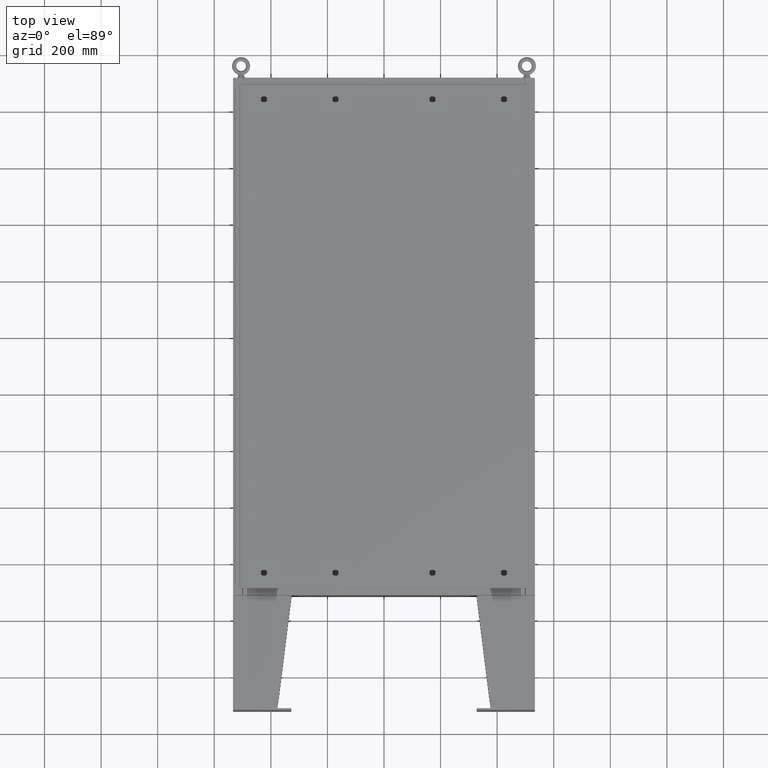
[diagram: clean part render]
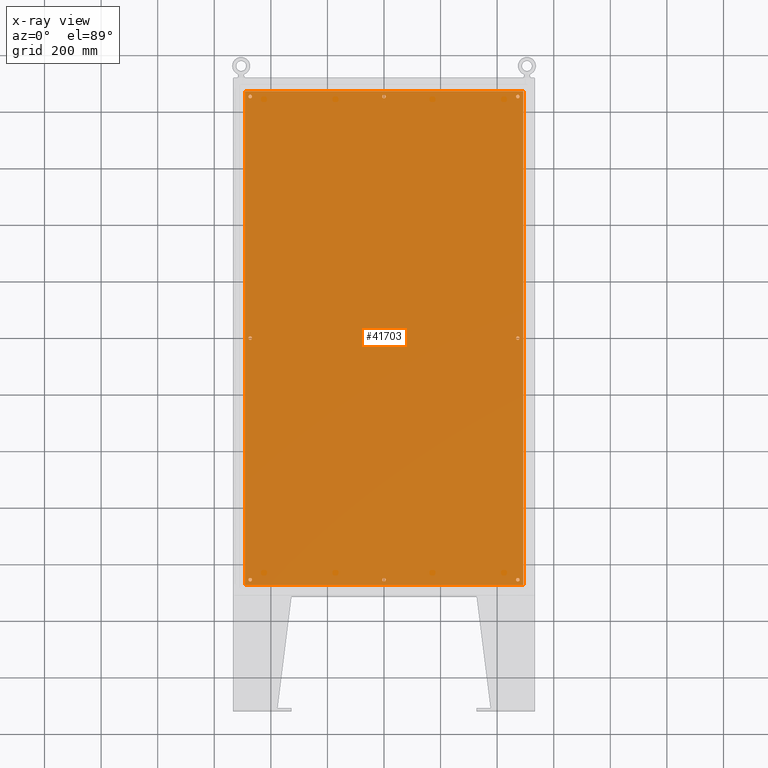
[diagram: x-ray — body ghosted, one internal face saturated and labeled with its STEP entity id]
A machine part, top view, then the same camera in x-ray: the body is ghosted and one INTERNAL B-rep face — a face not visible from any outside direction — is saturated and labeled: STEP entity #41703.
In plain terms, the highlighted planar face has unit normal (0, 0, -1).
Its self-contained STEP definition (entity closure, byte-faithful):
#134 = DIRECTION ( 'NONE',  ( -0.0000000000000000000, -0.0000000000000000000, 1.000000000000000000 ) ) ;
#239 = FACE_BOUND ( 'NONE', #47751, .T. ) ;
#1096 = EDGE_LOOP ( 'NONE', ( #36589, #51843 ) ) ;
#1311 = EDGE_CURVE ( 'NONE', #53087, #39742, #18558, .T. ) ;
#1860 = EDGE_CURVE ( 'NONE', #66412, #60055, #45798, .T. ) ;
#1984 = FACE_BOUND ( 'NONE', #1096, .T. ) ;
#2004 = EDGE_LOOP ( 'NONE', ( #71175, #69932, #26095, #37043 ) ) ;
#2598 = EDGE_CURVE ( 'NONE', #39639, #15399, #32056, .T. ) ;
#3147 = DIRECTION ( 'NONE',  ( -0.0000000000000000000, -0.0000000000000000000, 1.000000000000000000 ) ) ;
#3746 = CIRCLE ( 'NONE', #25615, 0.2499999999999987000 ) ;
#3819 = DIRECTION ( 'NONE',  ( -1.000000000000000000, 0.0000000000000000000, 0.0000000000000000000 ) ) ;
#4384 = ORIENTED_EDGE ( 'NONE', *, *, #9393, .T. ) ;
#5252 = CARTESIAN_POINT ( 'NONE',  ( 0.0000000000000000000, -33.62500000000000000, -0.1039999999999999800 ) ) ;
#6091 = CARTESIAN_POINT ( 'NONE',  ( -0.2499999999999998600, 33.62500000000000000, -0.1039999999999999800 ) ) ;
#6591 = DIRECTION ( 'NONE',  ( -0.0000000000000000000, -0.0000000000000000000, 1.000000000000000000 ) ) ;
#6608 = CIRCLE ( 'NONE', #62903, 0.2499999999999987000 ) ;
#7178 = DIRECTION ( 'NONE',  ( -1.000000000000000000, 0.0000000000000000000, 0.0000000000000000000 ) ) ;
#7370 = CARTESIAN_POINT ( 'NONE',  ( -19.38300000000000300, 34.38300000000000300, -0.1040000000000052800 ) ) ;
#7408 = VERTEX_POINT ( 'NONE', #6091 ) ;
#8120 = DIRECTION ( 'NONE',  ( 1.000000000000000000, -0.0000000000000000000, -0.0000000000000000000 ) ) ;
#8627 = DIRECTION ( 'NONE',  ( -0.0000000000000000000, -0.0000000000000000000, 1.000000000000000000 ) ) ;
#8665 = AXIS2_PLACEMENT_3D ( 'NONE', #18256, #56419, #23710 ) ;
#9054 = CIRCLE ( 'NONE', #53617, 0.2499999999999987000 ) ;
#9199 = CARTESIAN_POINT ( 'NONE',  ( 19.38299999999999900, -34.38300000000000300, -0.1040000000000009100 ) ) ;
#9255 = DIRECTION ( 'NONE',  ( -0.0000000000000000000, -0.0000000000000000000, 1.000000000000000000 ) ) ;
#9393 = EDGE_CURVE ( 'NONE', #39742, #53087, #23120, .T. ) ;
#9427 = ORIENTED_EDGE ( 'NONE', *, *, #70100, .T. ) ;
#9812 = DIRECTION ( 'NONE',  ( -1.000000000000000000, 0.0000000000000000000, 0.0000000000000000000 ) ) ;
#10026 = CARTESIAN_POINT ( 'NONE',  ( 0.2499999999999998600, 33.62500000000000000, -0.1039999999999999800 ) ) ;
#10830 = DIRECTION ( 'NONE',  ( -1.000000000000000000, 0.0000000000000000000, 0.0000000000000000000 ) ) ;
#10861 = VECTOR ( 'NONE', #31168, 39.37007874015748100 ) ;
#11037 = CIRCLE ( 'NONE', #22914, 0.2500000000000011700 ) ;
#11239 = ORIENTED_EDGE ( 'NONE', *, *, #1311, .T. ) ;
#11397 = CARTESIAN_POINT ( 'NONE',  ( 18.62500000000000700, 33.62500000000000000, -0.1039999999999999800 ) ) ;
#11493 = DIRECTION ( 'NONE',  ( -0.0000000000000000000, -0.0000000000000000000, 1.000000000000000000 ) ) ;
#11635 = AXIS2_PLACEMENT_3D ( 'NONE', #59013, #61467, #61143 ) ;
#11678 = CARTESIAN_POINT ( 'NONE',  ( -18.37500000000000700, -33.62500000000000000, -0.1039999999999999800 ) ) ;
#11689 = CARTESIAN_POINT ( 'NONE',  ( -18.62500000000000700, -33.62500000000000000, -0.1039999999999999800 ) ) ;
#12294 = LINE ( 'NONE', #7370, #25051 ) ;
#13134 = CARTESIAN_POINT ( 'NONE',  ( -18.87500000000000400, -7.992687152332741600E-016, -0.1039999999999999800 ) ) ;
#13865 = CARTESIAN_POINT ( 'NONE',  ( 18.87500000000000400, 3.731924441611933200E-015, -0.1039999999999999800 ) ) ;
#14423 = EDGE_LOOP ( 'NONE', ( #64960, #36061 ) ) ;
#14634 = EDGE_LOOP ( 'NONE', ( #57645, #9427 ) ) ;
#14907 = FACE_BOUND ( 'NONE', #43596, .T. ) ;
#15399 = VERTEX_POINT ( 'NONE', #67489 ) ;
#15923 = CARTESIAN_POINT ( 'NONE',  ( 18.37500000000000700, -33.62500000000000000, -0.1039999999999999800 ) ) ;
#16190 = ORIENTED_EDGE ( 'NONE', *, *, #64404, .T. ) ;
#16619 = FACE_BOUND ( 'NONE', #14423, .T. ) ;
#17160 = EDGE_CURVE ( 'NONE', #55522, #53568, #11037, .T. ) ;
#17538 = CARTESIAN_POINT ( 'NONE',  ( 0.0000000000000000000, 0.0000000000000000000, -0.1039999999999999800 ) ) ;
#17976 = CARTESIAN_POINT ( 'NONE',  ( 19.38299999999999900, 34.38300000000000300, -0.1040000000000009100 ) ) ;
#18256 = CARTESIAN_POINT ( 'NONE',  ( 18.62500000000000400, 3.731924441611933200E-015, -0.1039999999999999800 ) ) ;
#18558 = CIRCLE ( 'NONE', #11635, 0.2500000000000008900 ) ;
#19074 = DIRECTION ( 'NONE',  ( -0.0000000000000000000, -0.0000000000000000000, 1.000000000000000000 ) ) ;
#19413 = VERTEX_POINT ( 'NONE', #10026 ) ;
#19430 = CARTESIAN_POINT ( 'NONE',  ( -18.37500000000000400, -8.298848852119578500E-016, -0.1039999999999999800 ) ) ;
#19762 = AXIS2_PLACEMENT_3D ( 'NONE', #22527, #35248, #3819 ) ;
#20052 = EDGE_CURVE ( 'NONE', #15399, #39639, #55287, .T. ) ;
#20746 = AXIS2_PLACEMENT_3D ( 'NONE', #31951, #9255, #48371 ) ;
#20801 = DIRECTION ( 'NONE',  ( -0.0000000000000000000, -0.0000000000000000000, 1.000000000000000000 ) ) ;
#20956 = CARTESIAN_POINT ( 'NONE',  ( 18.87500000000000400, 33.62500000000000000, -0.1039999999999999800 ) ) ;
#21117 = CARTESIAN_POINT ( 'NONE',  ( 19.38299999999999900, -34.38300000000000300, -0.1040000000000009100 ) ) ;
#21350 = AXIS2_PLACEMENT_3D ( 'NONE', #62944, #30192, #68566 ) ;
#21807 = EDGE_LOOP ( 'NONE', ( #55407, #49352 ) ) ;
#22380 = CIRCLE ( 'NONE', #48698, 0.2500000000000008900 ) ;
#22527 = CARTESIAN_POINT ( 'NONE',  ( -18.62500000000000400, -8.298848852119578500E-016, -0.1039999999999999800 ) ) ;
#22914 = AXIS2_PLACEMENT_3D ( 'NONE', #29977, #44143, #64961 ) ;
#23120 = CIRCLE ( 'NONE', #19762, 0.2500000000000008900 ) ;
#23710 = DIRECTION ( 'NONE',  ( -1.000000000000000000, 0.0000000000000000000, 0.0000000000000000000 ) ) ;
#24392 = AXIS2_PLACEMENT_3D ( 'NONE', #5252, #43487, #10830 ) ;
#25051 = VECTOR ( 'NONE', #67680, 39.37007874015748100 ) ;
#25452 = EDGE_CURVE ( 'NONE', #19413, #7408, #26428, .T. ) ;
#25615 = AXIS2_PLACEMENT_3D ( 'NONE', #35968, #3147, #41480 ) ;
#25640 = VERTEX_POINT ( 'NONE', #64115 ) ;
#26095 = ORIENTED_EDGE ( 'NONE', *, *, #41443, .F. ) ;
#26329 = VERTEX_POINT ( 'NONE', #21117 ) ;
#26428 = CIRCLE ( 'NONE', #52169, 0.2499999999999998600 ) ;
#26945 = EDGE_CURVE ( 'NONE', #53568, #55522, #36531, .T. ) ;
#27337 = DIRECTION ( 'NONE',  ( -1.000000000000000000, 0.0000000000000000000, 0.0000000000000000000 ) ) ;
#28619 = LINE ( 'NONE', #53553, #55947 ) ;
#28646 = VERTEX_POINT ( 'NONE', #17976 ) ;
#29427 = FACE_BOUND ( 'NONE', #21807, .T. ) ;
#29668 = CARTESIAN_POINT ( 'NONE',  ( 0.2500000000000011700, -33.62500000000000000, -0.1039999999999999800 ) ) ;
#29769 = LINE ( 'NONE', #40879, #53608 ) ;
#29893 = DIRECTION ( 'NONE',  ( -0.0000000000000000000, -0.0000000000000000000, 1.000000000000000000 ) ) ;
#29977 = CARTESIAN_POINT ( 'NONE',  ( 0.0000000000000000000, -33.62500000000000000, -0.1039999999999999800 ) ) ;
#30192 = DIRECTION ( 'NONE',  ( -0.0000000000000000000, -0.0000000000000000000, 1.000000000000000000 ) ) ;
#30546 = ORIENTED_EDGE ( 'NONE', *, *, #2598, .T. ) ;
#30973 = VERTEX_POINT ( 'NONE', #31367 ) ;
#31134 = FACE_BOUND ( 'NONE', #14634, .T. ) ;
#31168 = DIRECTION ( 'NONE',  ( 0.0000000000000000000, 1.000000000000000000, 0.0000000000000000000 ) ) ;
#31176 = EDGE_CURVE ( 'NONE', #61213, #26329, #29769, .T. ) ;
#31367 = CARTESIAN_POINT ( 'NONE',  ( 18.37500000000000400, 3.762540611590617000E-015, -0.1039999999999999800 ) ) ;
#31934 = EDGE_CURVE ( 'NONE', #26329, #28646, #52654, .T. ) ;
#31951 = CARTESIAN_POINT ( 'NONE',  ( -18.62500000000000700, 33.62500000000000000, -0.1039999999999999800 ) ) ;
#32056 = CIRCLE ( 'NONE', #20746, 0.2500000000000008900 ) ;
#33014 = CARTESIAN_POINT ( 'NONE',  ( -18.62500000000000700, -33.62500000000000000, -0.1039999999999999800 ) ) ;
#33090 = EDGE_LOOP ( 'NONE', ( #11239, #4384 ) ) ;
#34051 = DIRECTION ( 'NONE',  ( -1.000000000000000000, 0.0000000000000000000, -0.0000000000000000000 ) ) ;
#34892 = EDGE_LOOP ( 'NONE', ( #38248, #16190 ) ) ;
#35248 = DIRECTION ( 'NONE',  ( -0.0000000000000000000, -0.0000000000000000000, 1.000000000000000000 ) ) ;
#35968 = CARTESIAN_POINT ( 'NONE',  ( 18.62500000000000700, 33.62500000000000000, -0.1039999999999999800 ) ) ;
#35973 = VERTEX_POINT ( 'NONE', #11678 ) ;
#36061 = ORIENTED_EDGE ( 'NONE', *, *, #17160, .T. ) ;
#36531 = CIRCLE ( 'NONE', #24392, 0.2500000000000011700 ) ;
#36589 = ORIENTED_EDGE ( 'NONE', *, *, #25452, .T. ) ;
#37043 = ORIENTED_EDGE ( 'NONE', *, *, #31934, .F. ) ;
#38248 = ORIENTED_EDGE ( 'NONE', *, *, #50041, .T. ) ;
#38542 = DIRECTION ( 'NONE',  ( -1.000000000000000000, 0.0000000000000000000, 0.0000000000000000000 ) ) ;
#39371 = CARTESIAN_POINT ( 'NONE',  ( 0.0000000000000000000, 33.62500000000000000, -0.1039999999999999800 ) ) ;
#39639 = VERTEX_POINT ( 'NONE', #50332 ) ;
#39742 = VERTEX_POINT ( 'NONE', #13134 ) ;
#40879 = CARTESIAN_POINT ( 'NONE',  ( -19.50000000000000000, -34.38300000000000300, -0.1040000000000009400 ) ) ;
#41385 = CARTESIAN_POINT ( 'NONE',  ( 18.62500000000000400, 3.731924441611933200E-015, -0.1039999999999999800 ) ) ;
#41443 = EDGE_CURVE ( 'NONE', #28646, #63203, #28619, .T. ) ;
#41480 = DIRECTION ( 'NONE',  ( -1.000000000000000000, 0.0000000000000000000, 0.0000000000000000000 ) ) ;
#41703 = ADVANCED_FACE ( 'NONE', ( #16619, #1984, #31134, #60214, #43919, #29427, #14907, #239, #56742 ), #61251, .T. ) ;
#41814 = AXIS2_PLACEMENT_3D ( 'NONE', #17538, #66868, #34051 ) ;
#43487 = DIRECTION ( 'NONE',  ( -0.0000000000000000000, -0.0000000000000000000, 1.000000000000000000 ) ) ;
#43596 = EDGE_LOOP ( 'NONE', ( #53861, #46402 ) ) ;
#43638 = VERTEX_POINT ( 'NONE', #15923 ) ;
#43919 = FACE_BOUND ( 'NONE', #34892, .T. ) ;
#44143 = DIRECTION ( 'NONE',  ( -0.0000000000000000000, -0.0000000000000000000, 1.000000000000000000 ) ) ;
#44777 = DIRECTION ( 'NONE',  ( -1.000000000000000000, 0.0000000000000000000, 0.0000000000000000000 ) ) ;
#45798 = CIRCLE ( 'NONE', #69044, 0.2499999999999987000 ) ;
#45957 = CIRCLE ( 'NONE', #67527, 0.2499999999999987000 ) ;
#46402 = ORIENTED_EDGE ( 'NONE', *, *, #1860, .T. ) ;
#46806 = DIRECTION ( 'NONE',  ( -1.000000000000000000, 0.0000000000000000000, 0.0000000000000000000 ) ) ;
#47751 = EDGE_LOOP ( 'NONE', ( #30546, #70874 ) ) ;
#48371 = DIRECTION ( 'NONE',  ( -1.000000000000000000, 0.0000000000000000000, 0.0000000000000000000 ) ) ;
#48476 = EDGE_CURVE ( 'NONE', #43638, #60989, #45957, .T. ) ;
#48698 = AXIS2_PLACEMENT_3D ( 'NONE', #41385, #8627, #46806 ) ;
#49266 = CIRCLE ( 'NONE', #21350, 0.2499999999999987000 ) ;
#49352 = ORIENTED_EDGE ( 'NONE', *, *, #48476, .T. ) ;
#50041 = EDGE_CURVE ( 'NONE', #35973, #25640, #6608, .T. ) ;
#50332 = CARTESIAN_POINT ( 'NONE',  ( -18.37500000000000700, 33.62500000000000000, -0.1039999999999999800 ) ) ;
#50495 = AXIS2_PLACEMENT_3D ( 'NONE', #50609, #61698, #65644 ) ;
#50609 = CARTESIAN_POINT ( 'NONE',  ( -18.62500000000000700, 33.62500000000000000, -0.1039999999999999800 ) ) ;
#51843 = ORIENTED_EDGE ( 'NONE', *, *, #56878, .T. ) ;
#52169 = AXIS2_PLACEMENT_3D ( 'NONE', #62764, #19074, #7178 ) ;
#52449 = CARTESIAN_POINT ( 'NONE',  ( 18.87500000000000400, -33.62500000000000000, -0.1039999999999999800 ) ) ;
#52654 = LINE ( 'NONE', #9199, #10861 ) ;
#53087 = VERTEX_POINT ( 'NONE', #19430 ) ;
#53463 = CARTESIAN_POINT ( 'NONE',  ( 18.37500000000000700, 33.62500000000000000, -0.1039999999999999800 ) ) ;
#53553 = CARTESIAN_POINT ( 'NONE',  ( 19.50000000000000000, 34.38299999999999600, -0.1040000000000009400 ) ) ;
#53568 = VERTEX_POINT ( 'NONE', #29668 ) ;
#53608 = VECTOR ( 'NONE', #8120, 39.37007874015748100 ) ;
#53617 = AXIS2_PLACEMENT_3D ( 'NONE', #11689, #20801, #27337 ) ;
#53861 = ORIENTED_EDGE ( 'NONE', *, *, #62338, .T. ) ;
#53983 = EDGE_CURVE ( 'NONE', #60989, #43638, #49266, .T. ) ;
#55287 = CIRCLE ( 'NONE', #50495, 0.2500000000000008900 ) ;
#55407 = ORIENTED_EDGE ( 'NONE', *, *, #53983, .T. ) ;
#55522 = VERTEX_POINT ( 'NONE', #70731 ) ;
#55947 = VECTOR ( 'NONE', #64923, 39.37007874015748100 ) ;
#56419 = DIRECTION ( 'NONE',  ( -0.0000000000000000000, -0.0000000000000000000, 1.000000000000000000 ) ) ;
#56742 = FACE_OUTER_BOUND ( 'NONE', #2004, .T. ) ;
#56878 = EDGE_CURVE ( 'NONE', #7408, #19413, #70549, .T. ) ;
#57645 = ORIENTED_EDGE ( 'NONE', *, *, #66257, .T. ) ;
#58696 = EDGE_CURVE ( 'NONE', #63203, #61213, #12294, .T. ) ;
#59013 = CARTESIAN_POINT ( 'NONE',  ( -18.62500000000000400, -8.298848852119578500E-016, -0.1039999999999999800 ) ) ;
#60055 = VERTEX_POINT ( 'NONE', #20956 ) ;
#60214 = FACE_BOUND ( 'NONE', #33090, .T. ) ;
#60989 = VERTEX_POINT ( 'NONE', #52449 ) ;
#61143 = DIRECTION ( 'NONE',  ( -1.000000000000000000, 0.0000000000000000000, 0.0000000000000000000 ) ) ;
#61213 = VERTEX_POINT ( 'NONE', #65503 ) ;
#61251 = PLANE ( 'NONE',  #41814 ) ;
#61402 = AXIS2_PLACEMENT_3D ( 'NONE', #39371, #6591, #44777 ) ;
#61467 = DIRECTION ( 'NONE',  ( -0.0000000000000000000, -0.0000000000000000000, 1.000000000000000000 ) ) ;
#61698 = DIRECTION ( 'NONE',  ( -0.0000000000000000000, -0.0000000000000000000, 1.000000000000000000 ) ) ;
#62338 = EDGE_CURVE ( 'NONE', #60055, #66412, #3746, .T. ) ;
#62632 = CARTESIAN_POINT ( 'NONE',  ( 18.62500000000000700, -33.62500000000000000, -0.1039999999999999800 ) ) ;
#62764 = CARTESIAN_POINT ( 'NONE',  ( 0.0000000000000000000, 33.62500000000000000, -0.1039999999999999800 ) ) ;
#62903 = AXIS2_PLACEMENT_3D ( 'NONE', #33014, #134, #38542 ) ;
#62944 = CARTESIAN_POINT ( 'NONE',  ( 18.62500000000000700, -33.62500000000000000, -0.1039999999999999800 ) ) ;
#63203 = VERTEX_POINT ( 'NONE', #66306 ) ;
#63526 = CIRCLE ( 'NONE', #8665, 0.2500000000000008900 ) ;
#64115 = CARTESIAN_POINT ( 'NONE',  ( -18.87500000000000400, -33.62500000000000000, -0.1039999999999999800 ) ) ;
#64404 = EDGE_CURVE ( 'NONE', #25640, #35973, #9054, .T. ) ;
#64923 = DIRECTION ( 'NONE',  ( -1.000000000000000000, -0.0000000000000000000, -0.0000000000000000000 ) ) ;
#64960 = ORIENTED_EDGE ( 'NONE', *, *, #26945, .T. ) ;
#64961 = DIRECTION ( 'NONE',  ( -1.000000000000000000, 0.0000000000000000000, 0.0000000000000000000 ) ) ;
#65089 = VERTEX_POINT ( 'NONE', #13865 ) ;
#65503 = CARTESIAN_POINT ( 'NONE',  ( -19.38300000000000300, -34.38300000000000300, -0.1040000000000009400 ) ) ;
#65644 = DIRECTION ( 'NONE',  ( -1.000000000000000000, 0.0000000000000000000, 0.0000000000000000000 ) ) ;
#66257 = EDGE_CURVE ( 'NONE', #65089, #30973, #22380, .T. ) ;
#66306 = CARTESIAN_POINT ( 'NONE',  ( -19.38300000000000300, 34.38300000000000300, -0.1040000000000052800 ) ) ;
#66412 = VERTEX_POINT ( 'NONE', #53463 ) ;
#66868 = DIRECTION ( 'NONE',  ( 0.0000000000000000000, 0.0000000000000000000, -1.000000000000000000 ) ) ;
#67489 = CARTESIAN_POINT ( 'NONE',  ( -18.87500000000001100, 33.62500000000000000, -0.1039999999999999800 ) ) ;
#67527 = AXIS2_PLACEMENT_3D ( 'NONE', #62632, #29893, #68284 ) ;
#67680 = DIRECTION ( 'NONE',  ( 0.0000000000000000000, -1.000000000000000000, 0.0000000000000000000 ) ) ;
#68284 = DIRECTION ( 'NONE',  ( -1.000000000000000000, 0.0000000000000000000, 0.0000000000000000000 ) ) ;
#68566 = DIRECTION ( 'NONE',  ( -1.000000000000000000, 0.0000000000000000000, 0.0000000000000000000 ) ) ;
#69044 = AXIS2_PLACEMENT_3D ( 'NONE', #11397, #11493, #9812 ) ;
#69932 = ORIENTED_EDGE ( 'NONE', *, *, #58696, .F. ) ;
#70100 = EDGE_CURVE ( 'NONE', #30973, #65089, #63526, .T. ) ;
#70549 = CIRCLE ( 'NONE', #61402, 0.2499999999999998600 ) ;
#70731 = CARTESIAN_POINT ( 'NONE',  ( -0.2500000000000011700, -33.62500000000000000, -0.1039999999999999800 ) ) ;
#70874 = ORIENTED_EDGE ( 'NONE', *, *, #20052, .T. ) ;
#71175 = ORIENTED_EDGE ( 'NONE', *, *, #31176, .F. ) ;